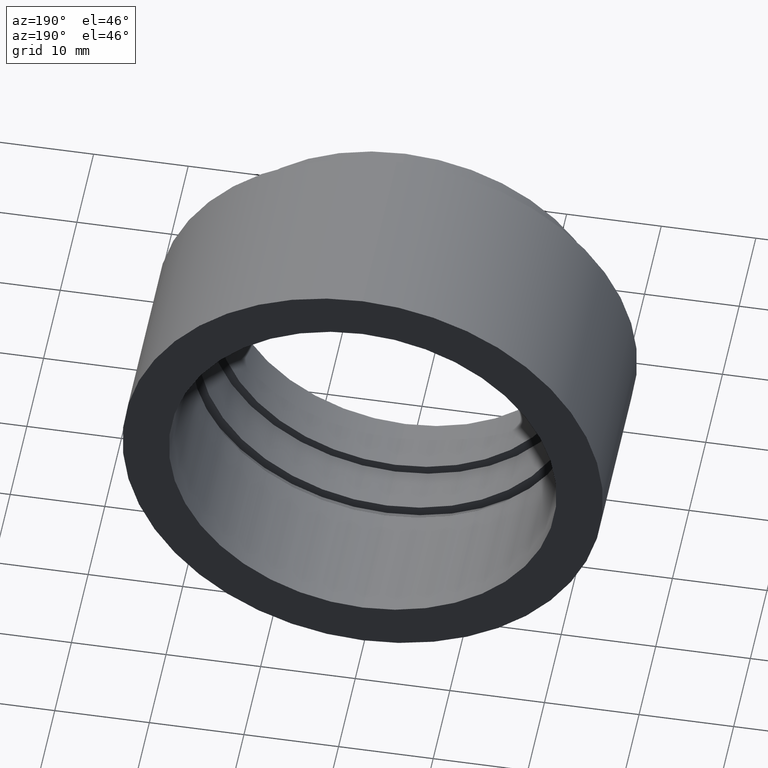
[diagram: clean part render]
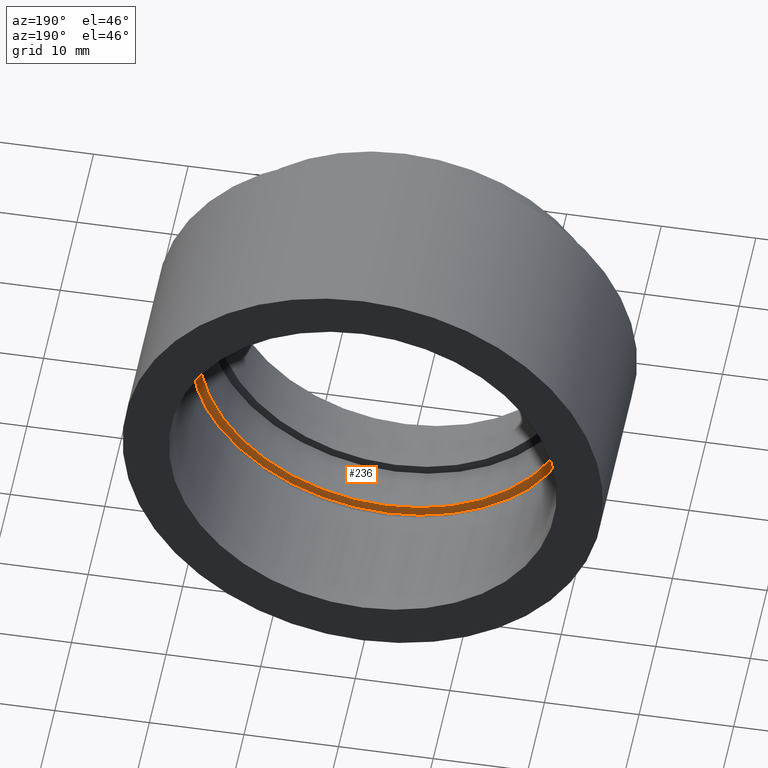
[diagram: same view with one face highlighted and labeled with its STEP entity id]
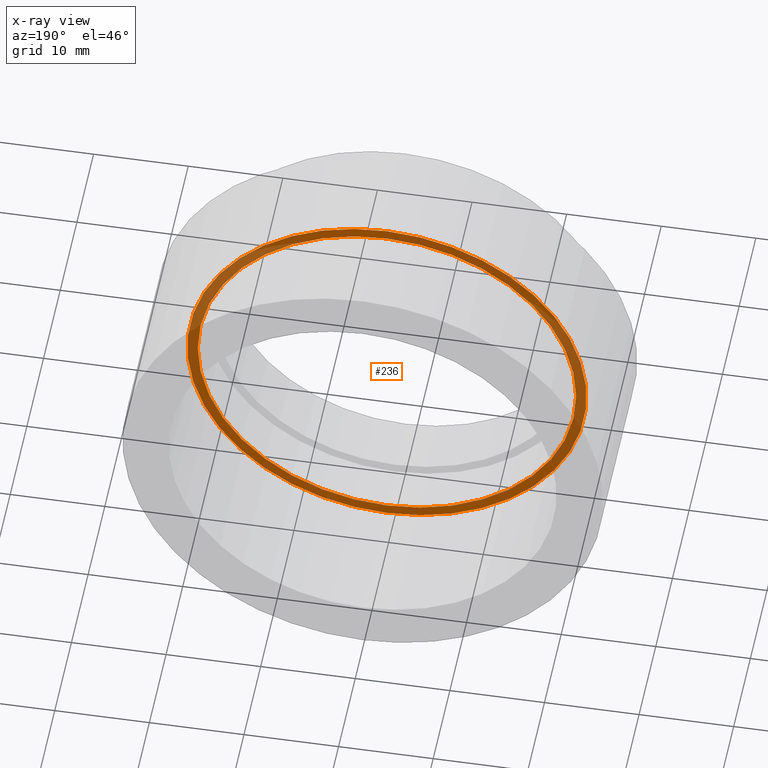
[diagram: x-ray of the same camera — body ghosted, the highlighted face saturated]
A machine part, auxiliary view. The second image highlights one B-rep face of the part: STEP entity #236.
The next image is the same camera in x-ray: the body ghosted, the highlighted face saturated — about 38% of this face is hidden behind the body in this view.
In plain terms, the highlighted planar face has unit normal (0, 1, 0).
Its self-contained STEP definition (entity closure, byte-faithful):
#7 = AXIS2_PLACEMENT_3D ( 'NONE', #117, #543, #64 ) ;
#21 = CARTESIAN_POINT ( 'NONE',  ( 2.584004746200915400E-015, 11.00000000000000200, 21.10000000000000100 ) ) ;
#31 = VERTEX_POINT ( 'NONE', #445 ) ;
#41 = DIRECTION ( 'NONE',  ( 0.0000000000000000000, 1.000000000000000000, 0.0000000000000000000 ) ) ;
#44 = EDGE_CURVE ( 'NONE', #267, #31, #115, .T. ) ;
#54 = EDGE_LOOP ( 'NONE', ( #422, #62 ) ) ;
#62 = ORIENTED_EDGE ( 'NONE', *, *, #592, .T. ) ;
#64 = DIRECTION ( 'NONE',  ( 0.0000000000000000000, 0.0000000000000000000, -1.000000000000000000 ) ) ;
#69 = FACE_BOUND ( 'NONE', #54, .T. ) ;
#75 = AXIS2_PLACEMENT_3D ( 'NONE', #589, #41, #335 ) ;
#99 = DIRECTION ( 'NONE',  ( 0.0000000000000000000, 0.0000000000000000000, -1.000000000000000000 ) ) ;
#101 = AXIS2_PLACEMENT_3D ( 'NONE', #112, #279, #99 ) ;
#112 = CARTESIAN_POINT ( 'NONE',  ( 0.0000000000000000000, 11.00000000000000200, 0.0000000000000000000 ) ) ;
#115 = CIRCLE ( 'NONE', #101, 21.10000000000000100 ) ;
#117 = CARTESIAN_POINT ( 'NONE',  ( 0.0000000000000000000, 11.00000000000000200, 0.0000000000000000000 ) ) ;
#129 = VERTEX_POINT ( 'NONE', #368 ) ;
#158 = ORIENTED_EDGE ( 'NONE', *, *, #295, .F. ) ;
#175 = CARTESIAN_POINT ( 'NONE',  ( 0.0000000000000000000, 11.00000000000000000, 0.0000000000000000000 ) ) ;
#201 = AXIS2_PLACEMENT_3D ( 'NONE', #175, #570, #268 ) ;
#210 = DIRECTION ( 'NONE',  ( -0.0000000000000000000, -1.000000000000000000, -0.0000000000000000000 ) ) ;
#233 = DIRECTION ( 'NONE',  ( 0.0000000000000000000, 0.0000000000000000000, -1.000000000000000000 ) ) ;
#236 = ADVANCED_FACE ( 'NONE', ( #69, #370 ), #369, .T. ) ;
#251 = CIRCLE ( 'NONE', #201, 19.99999999999999600 ) ;
#267 = VERTEX_POINT ( 'NONE', #21 ) ;
#268 = DIRECTION ( 'NONE',  ( 0.0000000000000000000, 0.0000000000000000000, -1.000000000000000000 ) ) ;
#272 = CIRCLE ( 'NONE', #501, 19.99999999999999600 ) ;
#279 = DIRECTION ( 'NONE',  ( -0.0000000000000000000, -1.000000000000000000, -0.0000000000000000000 ) ) ;
#295 = EDGE_CURVE ( 'NONE', #31, #267, #491, .T. ) ;
#335 = DIRECTION ( 'NONE',  ( 0.0000000000000000000, -0.0000000000000000000, 1.000000000000000000 ) ) ;
#368 = CARTESIAN_POINT ( 'NONE',  ( 2.449293598294706100E-015, 11.00000000000000000, 19.99999999999999600 ) ) ;
#369 = PLANE ( 'NONE',  #75 ) ;
#370 = FACE_OUTER_BOUND ( 'NONE', #390, .T. ) ;
#390 = EDGE_LOOP ( 'NONE', ( #158, #399 ) ) ;
#399 = ORIENTED_EDGE ( 'NONE', *, *, #44, .F. ) ;
#406 = CARTESIAN_POINT ( 'NONE',  ( 0.0000000000000000000, 11.00000000000000000, -19.99999999999999600 ) ) ;
#421 = VERTEX_POINT ( 'NONE', #406 ) ;
#422 = ORIENTED_EDGE ( 'NONE', *, *, #461, .T. ) ;
#445 = CARTESIAN_POINT ( 'NONE',  ( 0.0000000000000000000, 11.00000000000000200, -21.10000000000000100 ) ) ;
#454 = CARTESIAN_POINT ( 'NONE',  ( 0.0000000000000000000, 11.00000000000000000, 0.0000000000000000000 ) ) ;
#461 = EDGE_CURVE ( 'NONE', #421, #129, #272, .T. ) ;
#491 = CIRCLE ( 'NONE', #7, 21.10000000000000100 ) ;
#501 = AXIS2_PLACEMENT_3D ( 'NONE', #454, #210, #233 ) ;
#543 = DIRECTION ( 'NONE',  ( -0.0000000000000000000, -1.000000000000000000, -0.0000000000000000000 ) ) ;
#570 = DIRECTION ( 'NONE',  ( -0.0000000000000000000, -1.000000000000000000, -0.0000000000000000000 ) ) ;
#589 = CARTESIAN_POINT ( 'NONE',  ( 21.10000000000000100, 11.00000000000000000, 0.0000000000000000000 ) ) ;
#592 = EDGE_CURVE ( 'NONE', #129, #421, #251, .T. ) ;